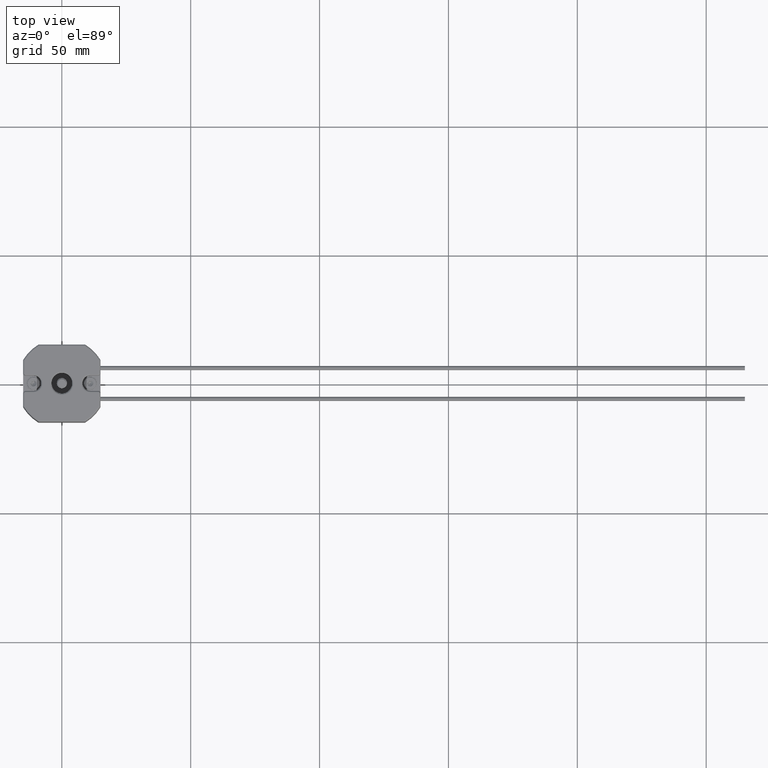
[diagram: clean part render]
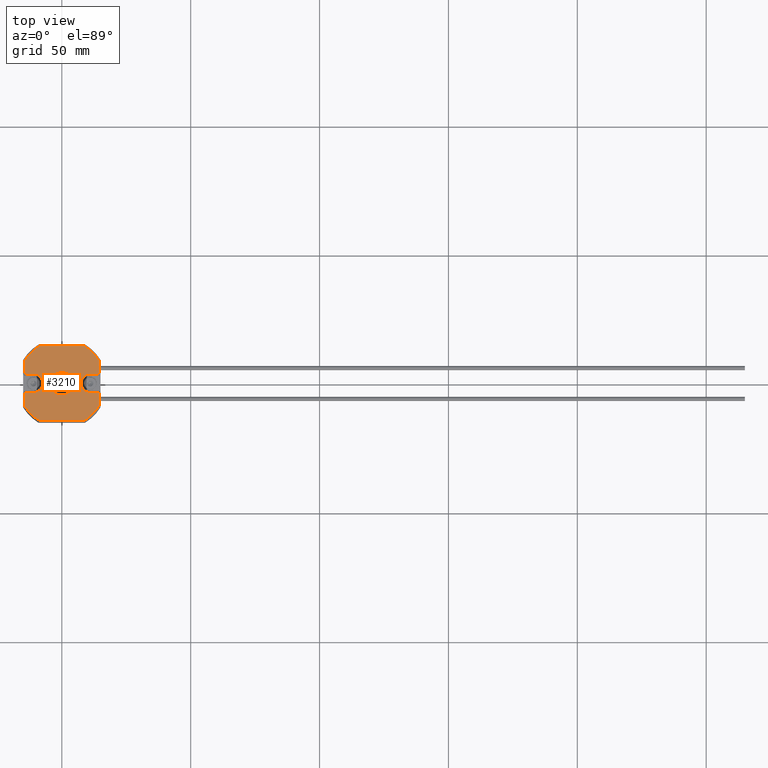
[diagram: same view with one face highlighted and labeled with its STEP entity id]
A machine part, top view. The second image highlights one B-rep face of the part: STEP entity #3210.
In plain terms, the highlighted planar face has unit normal (0, 0, 1).
Its self-contained STEP definition (entity closure, byte-faithful):
#275=LINE('',#5606,#441);
#276=LINE('',#5611,#442);
#277=LINE('',#5615,#443);
#278=LINE('',#5619,#444);
#279=LINE('',#5623,#445);
#280=LINE('',#5627,#446);
#281=LINE('',#5631,#447);
#282=LINE('',#5635,#448);
#283=LINE('',#5639,#449);
#284=LINE('',#5643,#450);
#441=VECTOR('',#4454,1000.);
#442=VECTOR('',#4457,1000.);
#443=VECTOR('',#4460,1000.);
#444=VECTOR('',#4463,1000.);
#445=VECTOR('',#4466,1000.);
#446=VECTOR('',#4469,1000.);
#447=VECTOR('',#4472,1000.);
#448=VECTOR('',#4475,1000.);
#449=VECTOR('',#4478,1000.);
#450=VECTOR('',#4481,1000.);
#587=PLANE('',#3930);
#670=ORIENTED_EDGE('',*,*,#1594,.T.);
#671=ORIENTED_EDGE('',*,*,#1595,.T.);
#672=ORIENTED_EDGE('',*,*,#1596,.T.);
#673=ORIENTED_EDGE('',*,*,#1597,.T.);
#674=ORIENTED_EDGE('',*,*,#1598,.T.);
#675=ORIENTED_EDGE('',*,*,#1599,.T.);
#676=ORIENTED_EDGE('',*,*,#1600,.T.);
#677=ORIENTED_EDGE('',*,*,#1601,.T.);
#678=ORIENTED_EDGE('',*,*,#1602,.T.);
#679=ORIENTED_EDGE('',*,*,#1603,.T.);
#680=ORIENTED_EDGE('',*,*,#1604,.T.);
#681=ORIENTED_EDGE('',*,*,#1605,.T.);
#682=ORIENTED_EDGE('',*,*,#1606,.T.);
#683=ORIENTED_EDGE('',*,*,#1607,.T.);
#684=ORIENTED_EDGE('',*,*,#1608,.T.);
#685=ORIENTED_EDGE('',*,*,#1609,.T.);
#686=ORIENTED_EDGE('',*,*,#1610,.T.);
#687=ORIENTED_EDGE('',*,*,#1611,.T.);
#688=ORIENTED_EDGE('',*,*,#1612,.T.);
#689=ORIENTED_EDGE('',*,*,#1613,.T.);
#690=ORIENTED_EDGE('',*,*,#1614,.T.);
#1594=EDGE_CURVE('',#2056,#2056,#2318,.F.);
#1595=EDGE_CURVE('',#2057,#2058,#275,.F.);
#1596=EDGE_CURVE('',#2058,#2059,#2319,.T.);
#1597=EDGE_CURVE('',#2059,#2060,#276,.T.);
#1598=EDGE_CURVE('',#2060,#2061,#2320,.T.);
#1599=EDGE_CURVE('',#2061,#2062,#277,.T.);
#1600=EDGE_CURVE('',#2062,#2063,#2321,.T.);
#1601=EDGE_CURVE('',#2063,#2064,#278,.T.);
#1602=EDGE_CURVE('',#2064,#2065,#2322,.T.);
#1603=EDGE_CURVE('',#2065,#2066,#279,.F.);
#1604=EDGE_CURVE('',#2066,#2067,#2323,.F.);
#1605=EDGE_CURVE('',#2067,#2068,#280,.F.);
#1606=EDGE_CURVE('',#2068,#2069,#2324,.T.);
#1607=EDGE_CURVE('',#2069,#2070,#281,.T.);
#1608=EDGE_CURVE('',#2070,#2071,#2325,.T.);
#1609=EDGE_CURVE('',#2071,#2072,#282,.T.);
#1610=EDGE_CURVE('',#2072,#2073,#2326,.T.);
#1611=EDGE_CURVE('',#2073,#2074,#283,.T.);
#1612=EDGE_CURVE('',#2074,#2075,#2327,.T.);
#1613=EDGE_CURVE('',#2075,#2076,#284,.F.);
#1614=EDGE_CURVE('',#2076,#2057,#2328,.F.);
#2056=VERTEX_POINT('',#5605);
#2057=VERTEX_POINT('',#5607);
#2058=VERTEX_POINT('',#5608);
#2059=VERTEX_POINT('',#5610);
#2060=VERTEX_POINT('',#5612);
#2061=VERTEX_POINT('',#5614);
#2062=VERTEX_POINT('',#5616);
#2063=VERTEX_POINT('',#5618);
#2064=VERTEX_POINT('',#5620);
#2065=VERTEX_POINT('',#5622);
#2066=VERTEX_POINT('',#5624);
#2067=VERTEX_POINT('',#5626);
#2068=VERTEX_POINT('',#5628);
#2069=VERTEX_POINT('',#5630);
#2070=VERTEX_POINT('',#5632);
#2071=VERTEX_POINT('',#5634);
#2072=VERTEX_POINT('',#5636);
#2073=VERTEX_POINT('',#5638);
#2074=VERTEX_POINT('',#5640);
#2075=VERTEX_POINT('',#5642);
#2076=VERTEX_POINT('',#5644);
#2318=CIRCLE('',#3931,4.6);
#2319=CIRCLE('',#3932,0.4);
#2320=CIRCLE('',#3933,16.9);
#2321=CIRCLE('',#3934,16.9);
#2322=CIRCLE('',#3935,0.4);
#2323=CIRCLE('',#3936,3.6);
#2324=CIRCLE('',#3937,0.4);
#2325=CIRCLE('',#3938,16.9);
#2326=CIRCLE('',#3939,16.9);
#2327=CIRCLE('',#3940,0.4);
#2328=CIRCLE('',#3941,3.6);
#2550=EDGE_LOOP('',(#670));
#2551=EDGE_LOOP('',(#671,#672,#673,#674,#675,#676,#677,#678,#679,#680,#681,
#682,#683,#684,#685,#686,#687,#688,#689,#690));
#2827=FACE_BOUND('',#2550,.T.);
#2828=FACE_BOUND('',#2551,.T.);
#3210=ADVANCED_FACE('',(#2827,#2828),#587,.T.);
#3930=AXIS2_PLACEMENT_3D('',#5603,#4450,#4451);
#3931=AXIS2_PLACEMENT_3D('',#5604,#4452,#4453);
#3932=AXIS2_PLACEMENT_3D('',#5609,#4455,#4456);
#3933=AXIS2_PLACEMENT_3D('',#5613,#4458,#4459);
#3934=AXIS2_PLACEMENT_3D('',#5617,#4461,#4462);
#3935=AXIS2_PLACEMENT_3D('',#5621,#4464,#4465);
#3936=AXIS2_PLACEMENT_3D('',#5625,#4467,#4468);
#3937=AXIS2_PLACEMENT_3D('',#5629,#4470,#4471);
#3938=AXIS2_PLACEMENT_3D('',#5633,#4473,#4474);
#3939=AXIS2_PLACEMENT_3D('',#5637,#4476,#4477);
#3940=AXIS2_PLACEMENT_3D('',#5641,#4479,#4480);
#3941=AXIS2_PLACEMENT_3D('',#5645,#4482,#4483);
#4450=DIRECTION('',(0.,0.,1.));
#4451=DIRECTION('',(1.,0.,0.));
#4452=DIRECTION('',(0.,0.,1.));
#4453=DIRECTION('',(1.,0.,0.));
#4454=DIRECTION('',(1.,0.,0.));
#4455=DIRECTION('',(0.,0.,1.));
#4456=DIRECTION('',(1.,0.,0.));
#4457=DIRECTION('',(0.,-1.,0.));
#4458=DIRECTION('',(0.,0.,1.));
#4459=DIRECTION('',(1.,0.,0.));
#4460=DIRECTION('',(1.,5.78241158658936E-17,0.));
#4461=DIRECTION('',(0.,0.,1.));
#4462=DIRECTION('',(1.,0.,0.));
#4463=DIRECTION('',(0.,1.,0.));
#4464=DIRECTION('',(0.,0.,1.));
#4465=DIRECTION('',(1.,0.,0.));
#4466=DIRECTION('',(1.,0.,0.));
#4467=DIRECTION('',(0.,0.,1.));
#4468=DIRECTION('',(1.,0.,0.));
#4469=DIRECTION('',(-1.,0.,0.));
#4470=DIRECTION('',(0.,0.,1.));
#4471=DIRECTION('',(1.,0.,0.));
#4472=DIRECTION('',(0.,1.,0.));
#4473=DIRECTION('',(0.,0.,1.));
#4474=DIRECTION('',(1.,0.,0.));
#4475=DIRECTION('',(-1.,5.78241158658936E-17,0.));
#4476=DIRECTION('',(0.,0.,1.));
#4477=DIRECTION('',(1.,0.,0.));
#4478=DIRECTION('',(0.,-1.,0.));
#4479=DIRECTION('',(0.,0.,1.));
#4480=DIRECTION('',(1.,0.,0.));
#4481=DIRECTION('',(-1.,0.,0.));
#4482=DIRECTION('',(0.,0.,1.));
#4483=DIRECTION('',(1.,0.,0.));
#5603=CARTESIAN_POINT('',(-15.,-15.,8.));
#5604=CARTESIAN_POINT('',(0.,0.,8.));
#5605=CARTESIAN_POINT('',(4.6,0.,8.));
#5606=CARTESIAN_POINT('',(-14.,-3.6,8.));
#5607=CARTESIAN_POINT('',(-11.,-3.6,8.));
#5608=CARTESIAN_POINT('',(-14.,-3.6,8.));
#5609=CARTESIAN_POINT('',(-14.,-4.,8.));
#5610=CARTESIAN_POINT('',(-14.4,-4.,8.));
#5611=CARTESIAN_POINT('',(-14.4,-9.01387818866,8.));
#5612=CARTESIAN_POINT('',(-14.4,-8.8459030064771,8.));
#5613=CARTESIAN_POINT('',(0.,0.,8.));
#5614=CARTESIAN_POINT('',(-8.84590300647708,-14.4,8.));
#5615=CARTESIAN_POINT('',(9.01387818865998,-14.4,8.));
#5616=CARTESIAN_POINT('',(8.84590300647707,-14.4,8.));
#5617=CARTESIAN_POINT('',(0.,0.,8.));
#5618=CARTESIAN_POINT('',(14.4,-8.84590300647706,8.));
#5619=CARTESIAN_POINT('',(14.4,-4.,8.));
#5620=CARTESIAN_POINT('',(14.4,-4.,8.));
#5621=CARTESIAN_POINT('',(14.,-4.,8.));
#5622=CARTESIAN_POINT('',(14.,-3.6,8.));
#5623=CARTESIAN_POINT('',(11.,-3.6,8.));
#5624=CARTESIAN_POINT('',(11.,-3.6,8.));
#5625=CARTESIAN_POINT('',(11.,0.,8.));
#5626=CARTESIAN_POINT('',(11.,3.6,8.));
#5627=CARTESIAN_POINT('',(14.,3.6,8.));
#5628=CARTESIAN_POINT('',(14.,3.6,8.));
#5629=CARTESIAN_POINT('',(14.,4.,8.));
#5630=CARTESIAN_POINT('',(14.4,4.,8.));
#5631=CARTESIAN_POINT('',(14.4,9.01387818865997,8.));
#5632=CARTESIAN_POINT('',(14.4,8.84590300647706,8.));
#5633=CARTESIAN_POINT('',(0.,0.,8.));
#5634=CARTESIAN_POINT('',(8.84590300647708,14.4,8.));
#5635=CARTESIAN_POINT('',(-9.01387818865997,14.4,8.));
#5636=CARTESIAN_POINT('',(-8.84590300647707,14.4,8.));
#5637=CARTESIAN_POINT('',(0.,0.,8.));
#5638=CARTESIAN_POINT('',(-14.4,8.8459030064771,8.));
#5639=CARTESIAN_POINT('',(-14.4,4.,8.));
#5640=CARTESIAN_POINT('',(-14.4,4.,8.));
#5641=CARTESIAN_POINT('',(-14.,4.,8.));
#5642=CARTESIAN_POINT('',(-14.,3.6,8.));
#5643=CARTESIAN_POINT('',(-11.,3.6,8.));
#5644=CARTESIAN_POINT('',(-11.,3.6,8.));
#5645=CARTESIAN_POINT('',(-11.,0.,8.));